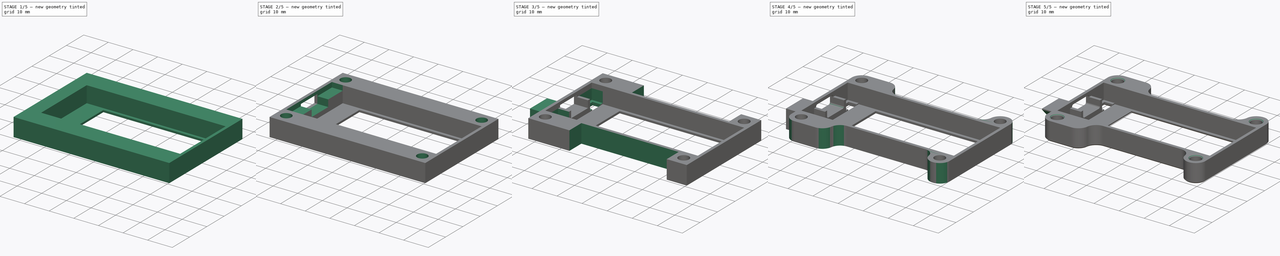
[diagram: build sequence overview — one tinted view per stage of 5, left to right]
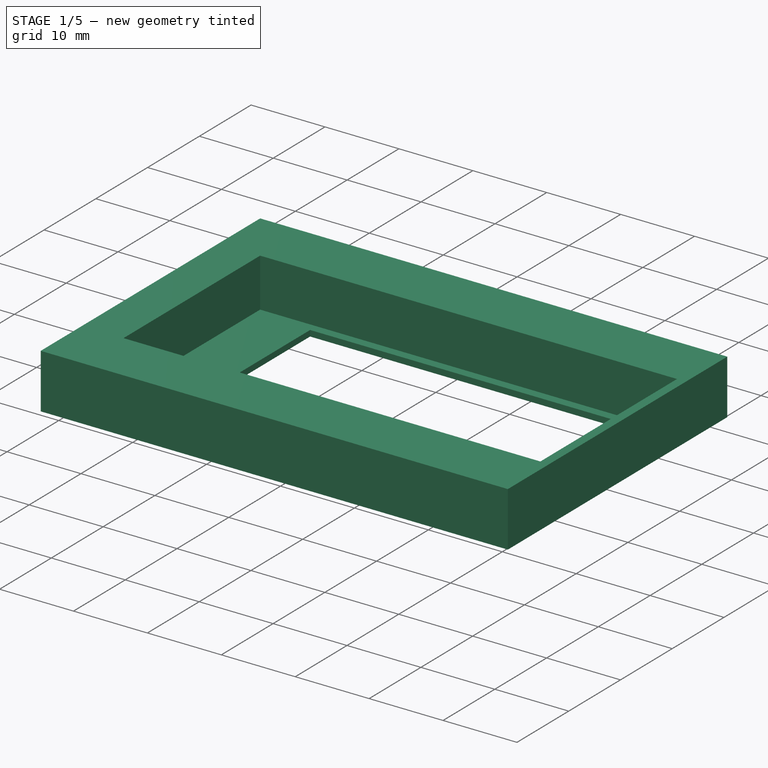
[diagram: stage 1 of 5 — iso view after this stage's code; geometry added in this stage tinted green]
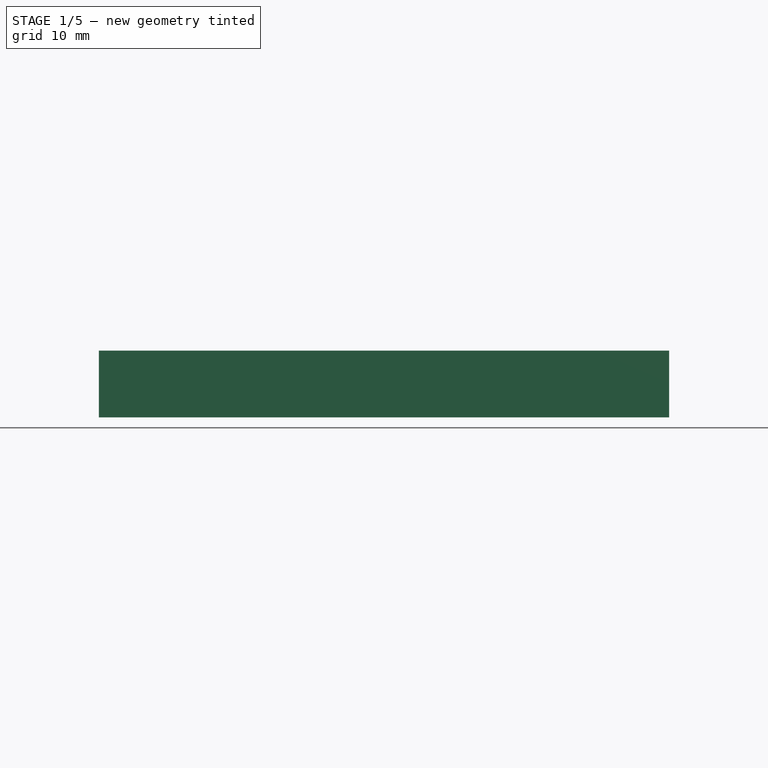
[diagram: stage 1 of 5 — front view after this stage's code; geometry added in this stage tinted green]
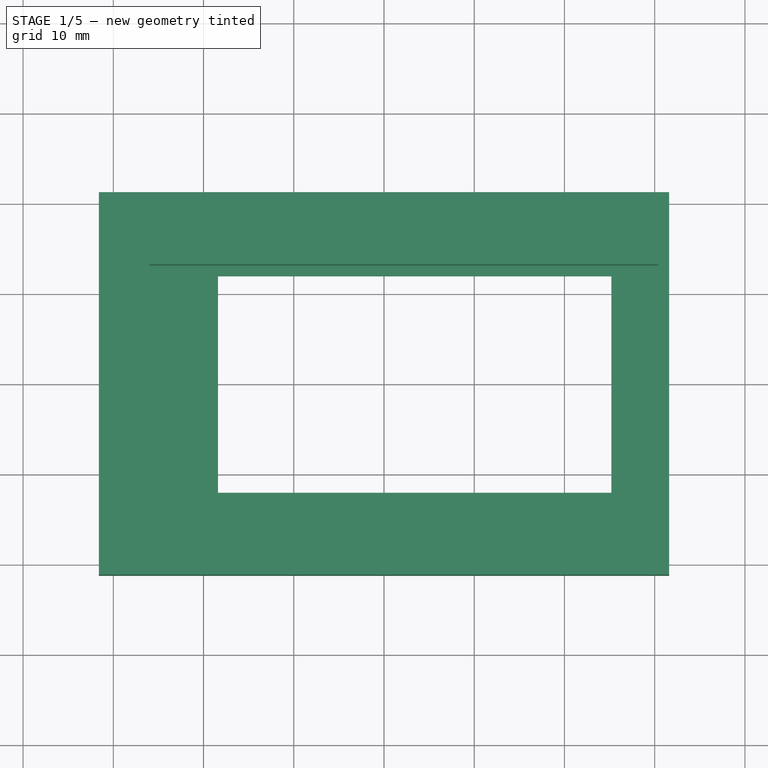
[diagram: stage 1 of 5 — top view after this stage's code; geometry added in this stage tinted green]
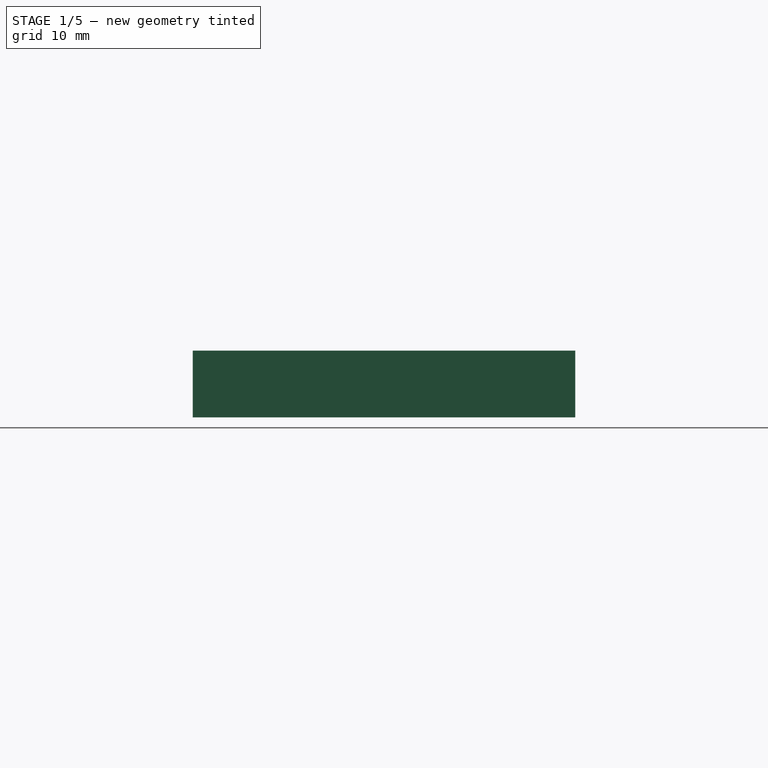
[diagram: stage 1 of 5 — right view after this stage's code; geometry added in this stage tinted green]
FCSTD DOCUMENT  (FreeCAD 0.21R33668 +26 (Git))
Label: topPlateV1.0
License: All rights reserved
LicenseURL: https://en.wikipedia.org/wiki/All_rights_reserved
objects: Sketcher::SketchObject×11, PartDesign::Pocket×8, PartDesign::Chamfer×4, PartDesign::Fillet×3, PartDesign::Pad×2, PartDesign::Plane×2, PartDesign::Hole×1, PartDesign::Body×1
note: 50 computed .brp shape members not serialized (recipe doc carries the construction recipe); baked Part::Feature solids carry a one-line shape summary decoded from their .brp

FEATURE [Sketcher::SketchObject] Sketch
  FullyConstrained = true
  MapMode = 5
  Support = -> [XY_Plane]
  sketch-geometry (5):
    g0: LineSegment StartX=31.6 StartY=-21.2 StartZ=0 EndX=31.6 EndY=21.2 EndZ=0
    g1: LineSegment StartX=31.6 StartY=21.2 StartZ=0 EndX=-31.6 EndY=21.2 EndZ=0
    g2: LineSegment StartX=-31.6 StartY=21.2 StartZ=0 EndX=-31.6 EndY=-21.2 EndZ=0
    g3: LineSegment StartX=-31.6 StartY=-21.2 StartZ=0 EndX=31.6 EndY=-21.2 EndZ=0
    g4: GeomPoint X=0 Y=0 Z=0
  constraints (12):
    c: Coincident(g0,g1)
    c: Coincident(g1,g2)
    c: Coincident(g2,g3)
    c: Coincident(g3,g0)
    c: Horizontal(g1)
    c: Horizontal(g3)
    c: Vertical(g0)
    c: Vertical(g2)
    c: Symmetric(g1,g0,g4)
    c: Coincident(g4,g-1)
    c: Distance(g1) = 63.2
    c: Distance(g2) = 42.4
FEATURE [PartDesign::Pad] Pad
  Direction = (0,0,1)
  Length = 7.4
  Length2 = 10
  Profile = -> Sketch
  ReferenceAxis = -> Sketch [N_Axis]
  Type = 0
FEATURE [PartDesign::Plane] DatumPlane
  Length = 74.4428
  MapMode = 5
  Placement = pos=(0,0,7.4) rot=(0,0,1;0rad)
  ResizeMode = 0
  Support = -> [Pad]
  Width = 61.2428
FEATURE [Sketcher::SketchObject] Sketch001
  FullyConstrained = true
  MapMode = 5
  Placement = pos=(0,0,7.4) rot=(0,0,1;0rad)
  Support = -> [DatumPlane]
  sketch-geometry (5):
    g0: LineSegment StartX=30.4 StartY=-13.2 StartZ=0 EndX=30.4 EndY=13.2 EndZ=0
    g1: LineSegment StartX=30.4 StartY=13.2 StartZ=0 EndX=-26 EndY=13.2 EndZ=0
    g2: LineSegment StartX=-26 StartY=13.2 StartZ=0 EndX=-26 EndY=-13.2 EndZ=0
    g3: LineSegment StartX=-26 StartY=-13.2 StartZ=0 EndX=30.4 EndY=-13.2 EndZ=0
    g4: GeomPoint X=2.2 Y=0 Z=0
  constraints (13):
    c: Coincident(g0,g1)
    c: Coincident(g1,g2)
    c: Coincident(g2,g3)
    c: Coincident(g3,g0)
    c: Horizontal(g1)
    c: Horizontal(g3)
    c: Vertical(g0)
    c: Vertical(g2)
    c: Symmetric(g1,g0,g4)
    c: PointOnObject(g4,g-1)
    c: DistanceX(g-1,g4) = 2.2
    c: Distance(g1) = 56.4
    c: Distance(g0) = 26.4
FEATURE [PartDesign::Pocket] Pocket
  BaseFeature = -> Pad
  Direction = (0,0,-1)
  Length = 6.6
  Length2 = 5
  Profile = -> Sketch001
  ReferenceAxis = -> Sketch001 [N_Axis]
  Type = 0
FEATURE [Sketcher::SketchObject] Sketch002
  FullyConstrained = true
  MapMode = 5
  Placement = pos=(0,0,7.4) rot=(0,0,1;0rad)
  Support = -> [DatumPlane]
  sketch-geometry (5):
    g0: LineSegment StartX=25.2 StartY=-12 StartZ=0 EndX=25.2 EndY=12 EndZ=0
    g1: LineSegment StartX=25.2 StartY=12 StartZ=0 EndX=-18.4 EndY=12 EndZ=0
    g2: LineSegment StartX=-18.4 StartY=12 StartZ=0 EndX=-18.4 EndY=-12 EndZ=0
    g3: LineSegment StartX=-18.4 StartY=-12 StartZ=0 EndX=25.2 EndY=-12 EndZ=0
    g4: GeomPoint X=3.4 Y=0 Z=0
  constraints (13):
    c: Coincident(g0,g1)
    c: Coincident(g1,g2)
    c: Coincident(g2,g3)
    c: Coincident(g3,g0)
    c: Horizontal(g1)
    c: Horizontal(g3)
    c: Vertical(g0)
    c: Vertical(g2)
    c: Symmetric(g1,g0,g4)
    c: PointOnObject(g4,g-1)
    c: Distance(g-1,g4) = 3.4
    c: Distance(g0) = 24
    c: Distance(g1) = 43.6
FEATURE [PartDesign::Pocket] Pocket001
  BaseFeature = -> Pocket
  Direction = (0,0,-1)
  Length = 0
  Length2 = 5
  Profile = -> Sketch002
  ReferenceAxis = -> Sketch002 [N_Axis]
  Type = 3
  UpToFace = -> Pocket [Face4]
FEATURE [PartDesign::Plane] DatumPlane001
  Length = 60
  MapMode = 5
  Placement = pos=(-31.6,0,0) rot=(0.57735,-0.57735,-0.57735;2.0944rad)
  ResizeMode = 0
  Support = -> [Pocket001]
  Width = 60
FEATURE [Sketcher::SketchObject] Sketch003
  FullyConstrained = true
  MapMode = 5
  Placement = pos=(-31.6,0,0) rot=(0.57735,-0.57735,-0.57735;2.0944rad)
  Support = -> [DatumPlane001]
  sketch-geometry (4):
    g0: LineSegment StartX=-4.8 StartY=2.6 StartZ=0 EndX=4.8 EndY=2.6 EndZ=0
    g1: LineSegment StartX=4.8 StartY=2.6 StartZ=0 EndX=4.8 EndY=6.2 EndZ=0
    g2: LineSegment StartX=4.8 StartY=6.2 StartZ=0 EndX=-4.8 EndY=6.2 EndZ=0
    g3: LineSegment StartX=-4.8 StartY=6.2 StartZ=0 EndX=-4.8 EndY=2.6 EndZ=0
  constraints (12):
    c: Coincident(g0,g1)
    c: Coincident(g1,g2)
    c: Coincident(g2,g3)
    c: Coincident(g3,g0)
    c: Horizontal(g0)
    c: Horizontal(g2)
    c: Vertical(g1)
    c: Vertical(g3)
    c: Distance(g2) = 9.6
    c: Distance(g3) = 3.6
    c: Distance(g-1,g0) = 2.6
    c: Distance(g0,g-2) = 4.8
FEATURE [PartDesign::Pocket] Pocket002
  BaseFeature = -> Pocket001
  Direction = (1,0,0)
  Length = 1.2
  Length2 = 5
  Profile = -> Sketch003
  ReferenceAxis = -> Sketch003 [N_Axis]
  Type = 0
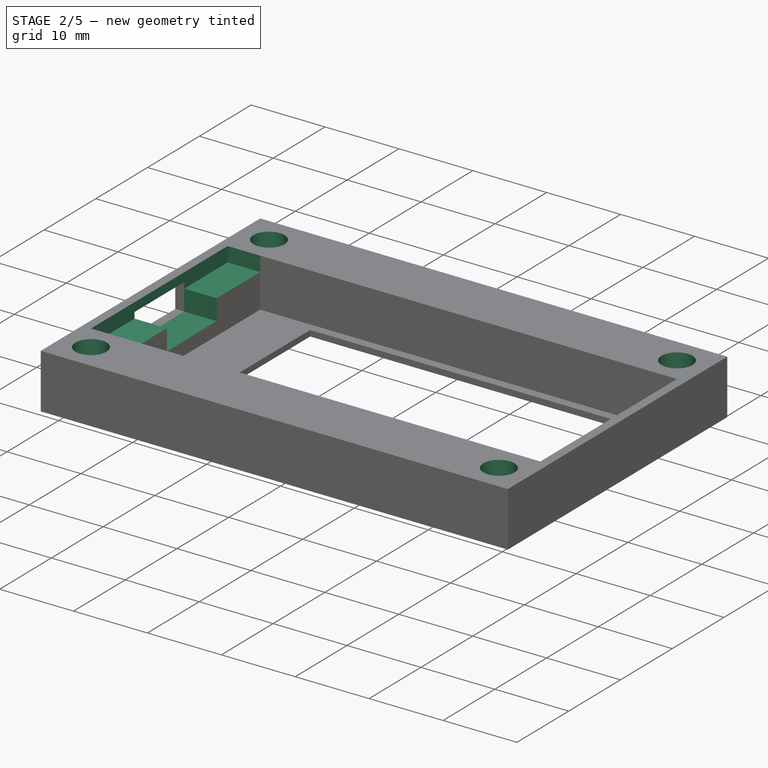
[diagram: stage 2 of 5 — iso view after this stage's code; geometry added in this stage tinted green]
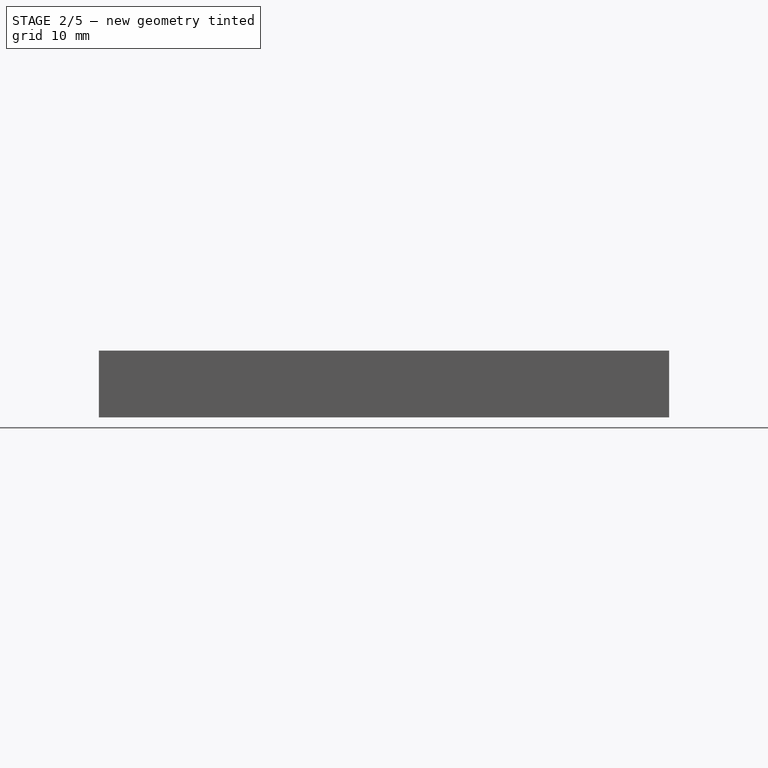
[diagram: stage 2 of 5 — front view after this stage's code; geometry added in this stage tinted green]
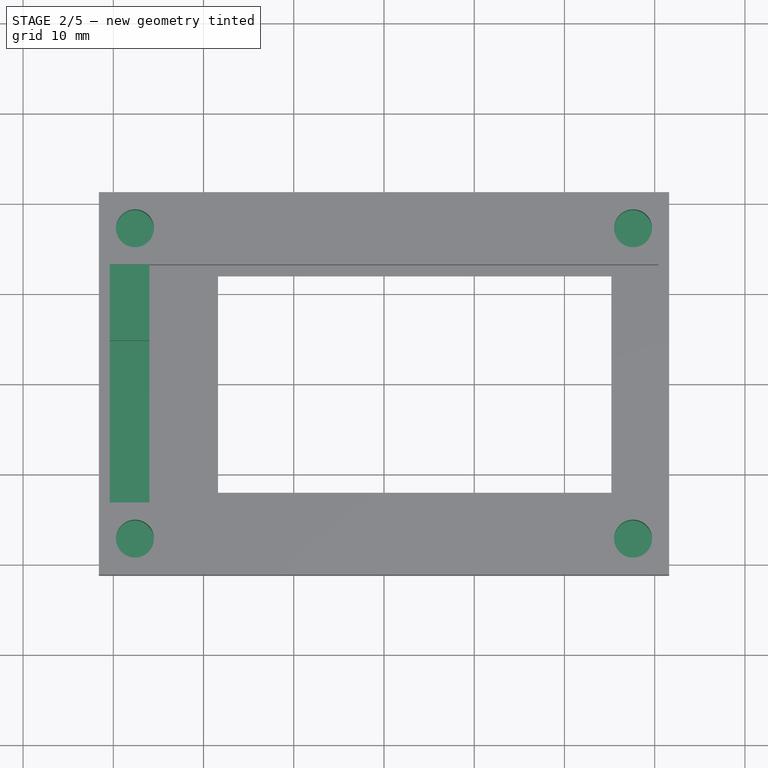
[diagram: stage 2 of 5 — top view after this stage's code; geometry added in this stage tinted green]
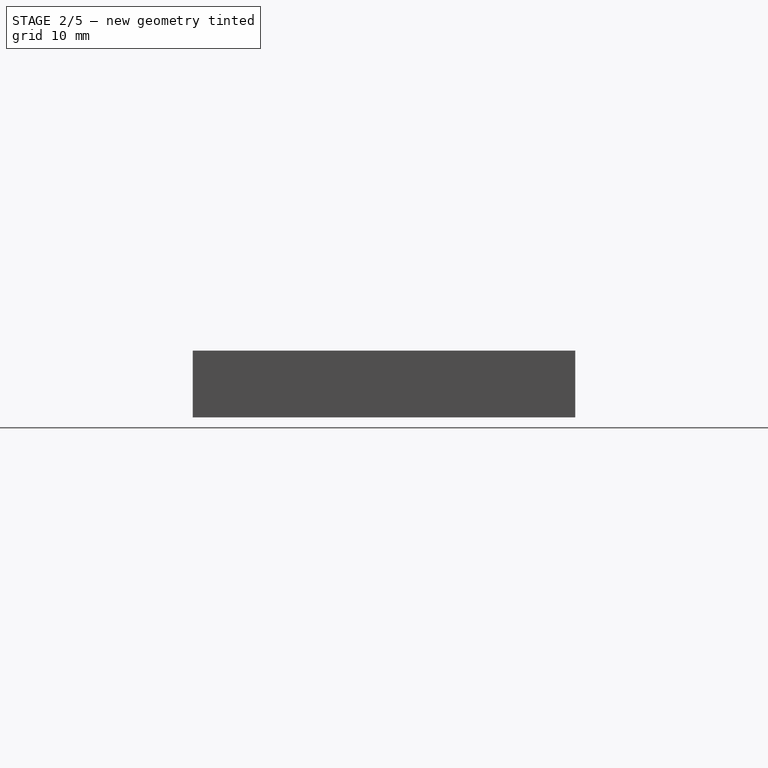
[diagram: stage 2 of 5 — right view after this stage's code; geometry added in this stage tinted green]
FEATURE [Sketcher::SketchObject] Sketch004
  FullyConstrained = true
  MapMode = 5
  Placement = pos=(0,0,7.4) rot=(0,0,1;0rad)
  Support = -> [DatumPlane]
  sketch-geometry (4):
    g0: Circle CenterX=-27.6 CenterY=17.2 CenterZ=0 NormalX=0 NormalY=0 NormalZ=1 AngleXU=0 Radius=2.05
    g1: Circle CenterX=-27.6 CenterY=-17.2 CenterZ=0 NormalX=0 NormalY=0 NormalZ=1 AngleXU=0 Radius=2.05
    g2: Circle CenterX=27.6 CenterY=17.2 CenterZ=0 NormalX=0 NormalY=0 NormalZ=1 AngleXU=0 Radius=2.05
    g3: Circle CenterX=27.6 CenterY=-17.2 CenterZ=0 NormalX=0 NormalY=0 NormalZ=1 AngleXU=0 Radius=2.05
  constraints (9):
    c: Diameter(g0) = 4.1
    c: DistanceX(g-2,g0) = -27.6
    c: DistanceY(g-1,g0) = 17.2
    c: Symmetric(g0,g1,g-1)
    c: Symmetric(g0,g2,g-2)
    c: Symmetric(g0,g3,g-1)
    c: Equal(g0,g1)
    c: Equal(g0,g2)
    c: Equal(g0,g3)
FEATURE [PartDesign::Hole] Hole
  BaseFeature = -> Pocket002
  CustomThreadClearance = 0
  Depth = 6
  DepthType = 0
  Diameter = 4.2
  DrillForDepth = false
  DrillPoint = 0
  DrillPointAngle = 118
  HoleCutCountersinkAngle = 90
  HoleCutCustomValues = false
  HoleCutDepth = 0
  HoleCutDiameter = 4.9
  HoleCutType = 0
  ModelThread = false
  Profile = -> Sketch004
  Tapered = false
  TaperedAngle = 90
  ThreadClass = 0
  ThreadDepth = 6
  ThreadDepthType = 0
  ThreadDirection = 0
  ThreadFit = 0
  ThreadSize = 0
  ThreadType = 0
  Threaded = false
  UseCustomThreadClearance = false
FEATURE [Sketcher::SketchObject] Sketch005
  FullyConstrained = true
  MapMode = 5
  Placement = pos=(0,0,7.4) rot=(0,0,1;0rad)
  Support = -> [DatumPlane]
  sketch-geometry (5):
    g0: LineSegment StartX=-30.4 StartY=-13.2 StartZ=0 EndX=-30.4 EndY=13.2 EndZ=0
    g1: LineSegment StartX=-30.4 StartY=13.2 StartZ=0 EndX=-26 EndY=13.2 EndZ=0
    g2: LineSegment StartX=-26 StartY=13.2 StartZ=0 EndX=-26 EndY=-13.2 EndZ=0
    g3: LineSegment StartX=-26 StartY=-13.2 StartZ=0 EndX=-30.4 EndY=-13.2 EndZ=0
    g4: GeomPoint X=-28.2 Y=0 Z=0
  constraints (13):
    c: Coincident(g0,g1)
    c: Coincident(g1,g2)
    c: Coincident(g2,g3)
    c: Coincident(g3,g0)
    c: Horizontal(g1)
    c: Horizontal(g3)
    c: Vertical(g0)
    c: Vertical(g2)
    c: Symmetric(g1,g0,g4)
    c: PointOnObject(g4,g-1)
    c: DistanceX(g4,g-1) = 28.2
    c: Distance(g1) = 4.4
    c: Distance(g0) = 26.4
FEATURE [PartDesign::Pocket] Pocket003
  BaseFeature = -> Hole
  Direction = (0,0,-1)
  Length = 2
  Length2 = 5
  Profile = -> Sketch005
  ReferenceAxis = -> Sketch005 [N_Axis]
  Type = 0
FEATURE [Sketcher::SketchObject] Sketch006
  FullyConstrained = true
  MapMode = 5
  Placement = pos=(0,0,7.4) rot=(0,0,1;0rad)
  Support = -> [DatumPlane]
  sketch-geometry (5):
    g0: LineSegment StartX=-26 StartY=-4.8 StartZ=0 EndX=-26 EndY=4.8 EndZ=0
    g1: LineSegment StartX=-26 StartY=4.8 StartZ=0 EndX=-30.4 EndY=4.8 EndZ=0
    g2: LineSegment StartX=-30.4 StartY=4.8 StartZ=0 EndX=-30.4 EndY=-4.8 EndZ=0
    g3: LineSegment StartX=-30.4 StartY=-4.8 StartZ=0 EndX=-26 EndY=-4.8 EndZ=0
    g4: GeomPoint X=-28.2 Y=0 Z=0
  constraints (13):
    c: Coincident(g0,g1)
    c: Coincident(g1,g2)
    c: Coincident(g2,g3)
    c: Coincident(g3,g0)
    c: Horizontal(g1)
    c: Horizontal(g3)
    c: Vertical(g0)
    c: Vertical(g2)
    c: Symmetric(g1,g0,g4)
    c: PointOnObject(g4,g-1)
    c: Distance(g1) = 4.4
    c: Distance(g0) = 9.6
    c: DistanceX(g4,g-1) = 28.2
FEATURE [PartDesign::Pocket] Pocket004
  BaseFeature = -> Pocket003
  Direction = (0,0,-1)
  Length = 4.8
  Length2 = 5
  Profile = -> Sketch006
  ReferenceAxis = -> Sketch006 [N_Axis]
  Type = 0
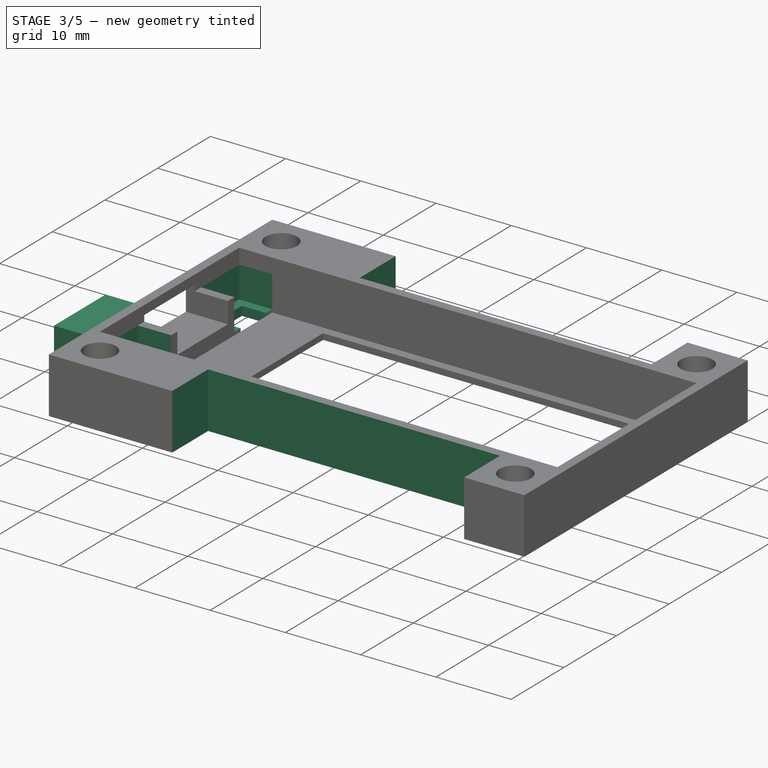
[diagram: stage 3 of 5 — iso view after this stage's code; geometry added in this stage tinted green]
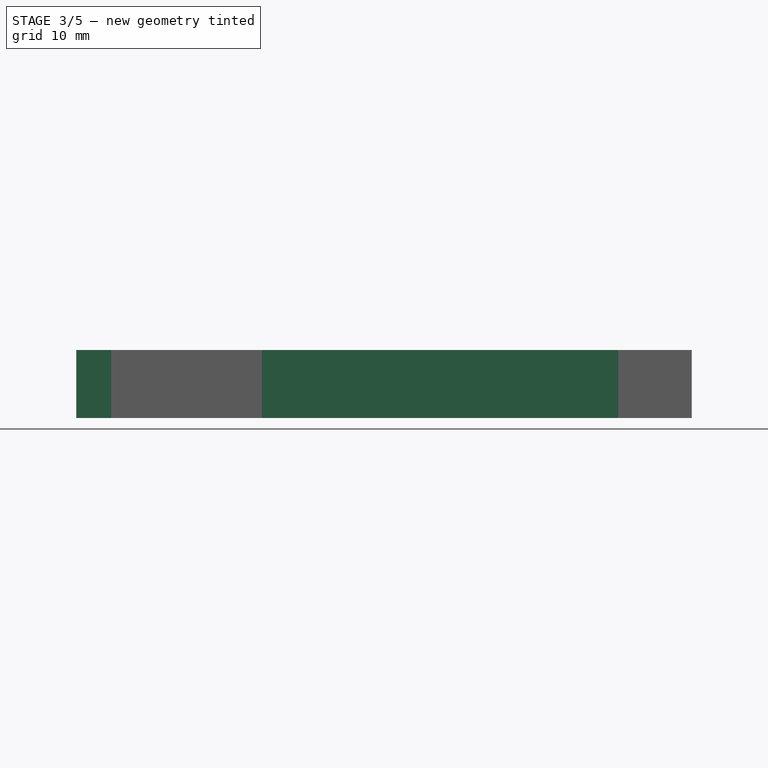
[diagram: stage 3 of 5 — front view after this stage's code; geometry added in this stage tinted green]
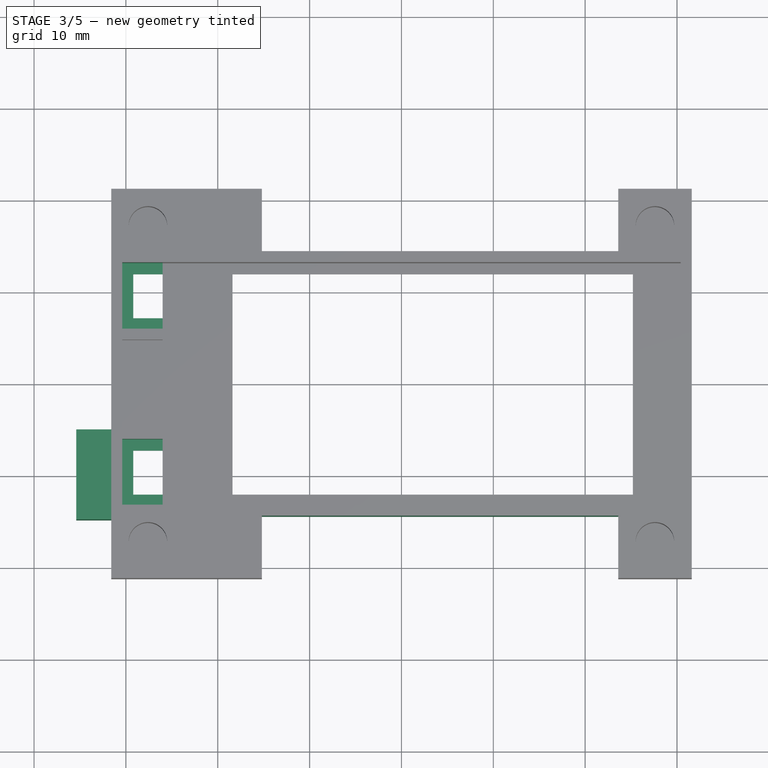
[diagram: stage 3 of 5 — top view after this stage's code; geometry added in this stage tinted green]
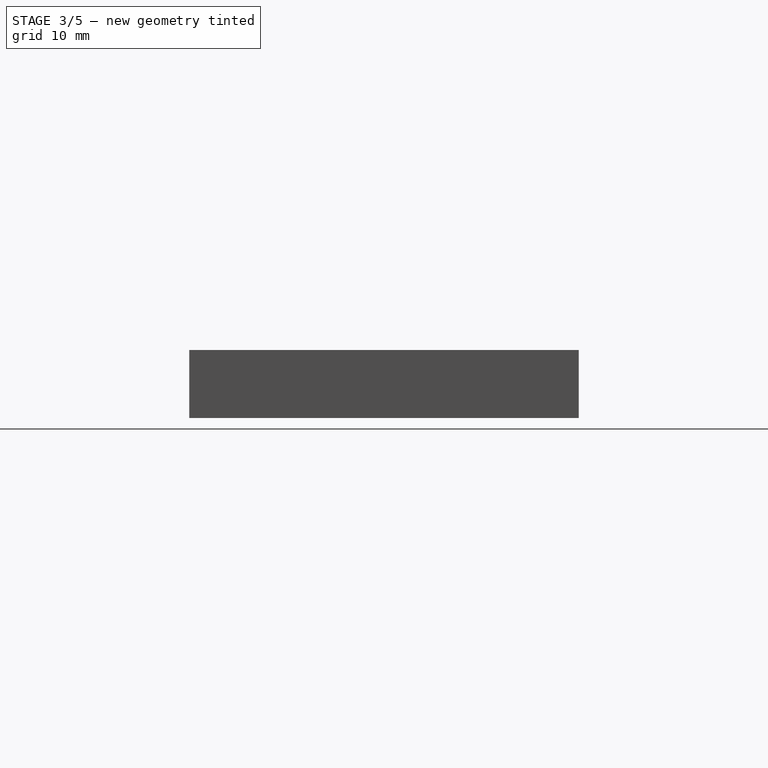
[diagram: stage 3 of 5 — right view after this stage's code; geometry added in this stage tinted green]
FEATURE [Sketcher::SketchObject] Sketch007
  FullyConstrained = true
  MapMode = 5
  Placement = pos=(0,0,7.4) rot=(0,0,1;0rad)
  Support = -> [DatumPlane]
  sketch-geometry (10):
    g0: LineSegment StartX=-30.4 StartY=6 StartZ=0 EndX=-30.4 EndY=13.2 EndZ=0
    g1: LineSegment StartX=-30.4 StartY=13.2 StartZ=0 EndX=-26 EndY=13.2 EndZ=0
    g2: LineSegment StartX=-26 StartY=13.2 StartZ=0 EndX=-26 EndY=6 EndZ=0
    g3: LineSegment StartX=-26 StartY=6 StartZ=0 EndX=-30.4 EndY=6 EndZ=0
    g4: GeomPoint X=-28.2 Y=9.6 Z=0
    g5: LineSegment StartX=-30.4 StartY=-6 StartZ=0 EndX=-30.4 EndY=-13.2 EndZ=0
    g6: LineSegment StartX=-30.4 StartY=-13.2 StartZ=0 EndX=-26 EndY=-13.2 EndZ=0
    g7: LineSegment StartX=-26 StartY=-13.2 StartZ=0 EndX=-26 EndY=-6 EndZ=0
    g8: LineSegment StartX=-26 StartY=-6 StartZ=0 EndX=-30.4 EndY=-6 EndZ=0
    g9: GeomPoint X=-28.2 Y=-9.6 Z=0
  constraints (25):
    c: Coincident(g0,g1)
    c: Coincident(g1,g2)
    c: Coincident(g2,g3)
    c: Coincident(g3,g0)
    c: Horizontal(g1)
    c: Horizontal(g3)
    c: Vertical(g0)
    c: Vertical(g2)
    c: Symmetric(g1,g0,g4)
    c: DistanceX(g4,g-1) = 28.2
    c: DistanceY(g-1,g4) = 9.6
    c: Distance(g1) = 4.4
    c: Distance(g2) = 7.2
    c: Coincident(g5,g6)
    c: Coincident(g6,g7)
    c: Coincident(g7,g8)
    c: Coincident(g8,g5)
    c: Horizontal(g6)
    c: Horizontal(g8)
    c: Vertical(g5)
    c: Vertical(g7)
    c: Symmetric(g6,g5,g9)
    c: Symmetric(g4,g9,g-1)
    c: Equal(g0,g5)
    c: Equal(g3,g8)
FEATURE [PartDesign::Pocket] Pocket005
  BaseFeature = -> Pocket004
  Direction = (0,0,-1)
  Length = 6.2
  Length2 = 5
  Profile = -> Sketch007
  ReferenceAxis = -> Sketch007 [N_Axis]
  Type = 0
FEATURE [Sketcher::SketchObject] Sketch009
  FullyConstrained = true
  MapMode = 5
  Placement = pos=(0,0,7.4) rot=(0,0,1;0rad)
  Support = -> [DatumPlane]
  sketch-geometry (10):
    g0: LineSegment StartX=-26 StartY=7.2 StartZ=0 EndX=-26 EndY=12 EndZ=0
    g1: LineSegment StartX=-26 StartY=12 StartZ=0 EndX=-29.2 EndY=12 EndZ=0
    g2: LineSegment StartX=-29.2 StartY=12 StartZ=0 EndX=-29.2 EndY=7.2 EndZ=0
    g3: LineSegment StartX=-29.2 StartY=7.2 StartZ=0 EndX=-26 EndY=7.2 EndZ=0
    g4: GeomPoint X=-27.6 Y=9.6 Z=0
    g5: LineSegment StartX=-26 StartY=-7.2 StartZ=0 EndX=-26 EndY=-12 EndZ=0
    g6: LineSegment StartX=-26 StartY=-12 StartZ=0 EndX=-29.2 EndY=-12 EndZ=0
    g7: LineSegment StartX=-29.2 StartY=-12 StartZ=0 EndX=-29.2 EndY=-7.2 EndZ=0
    g8: LineSegment StartX=-29.2 StartY=-7.2 StartZ=0 EndX=-26 EndY=-7.2 EndZ=0
    g9: GeomPoint X=-27.6 Y=-9.6 Z=0
  constraints (25):
    c: Coincident(g0,g1)
    c: Coincident(g1,g2)
    c: Coincident(g2,g3)
    c: Coincident(g3,g0)
    c: Horizontal(g1)
    c: Horizontal(g3)
    c: Vertical(g0)
    c: Vertical(g2)
    c: Symmetric(g1,g0,g4)
    c: DistanceY(g-1,g4) = 9.6
    c: DistanceX(g4,g-1) = 27.6
    c: Distance(g1) = 3.2
    c: Distance(g2) = 4.8
    c: Coincident(g5,g6)
    c: Coincident(g6,g7)
    c: Coincident(g7,g8)
    c: Coincident(g8,g5)
    c: Horizontal(g6)
    c: Horizontal(g8)
    c: Vertical(g5)
    c: Vertical(g7)
    c: Symmetric(g6,g5,g9)
    c: Equal(g2,g7)
    c: Equal(g6,g3)
    c: Symmetric(g4,g9,g-1)
FEATURE [PartDesign::Pocket] Pocket007
  BaseFeature = -> Pocket005
  Direction = (0,0,-1)
  Length = 0
  Length2 = 5
  Profile = -> Sketch009
  ReferenceAxis = -> Sketch009 [N_Axis]
  Type = 3
  UpToFace = -> Pocket005 [Face4]
FEATURE [Sketcher::SketchObject] Sketch010
  FullyConstrained = true
  MapMode = 5
  Placement = pos=(0,0,7.4) rot=(0,0,1;0rad)
  Support = -> [DatumPlane]
  sketch-geometry (10):
    g0: LineSegment StartX=23.6 StartY=14.4 StartZ=0 EndX=23.6 EndY=21.2 EndZ=0
    g1: LineSegment StartX=23.6 StartY=21.2 StartZ=0 EndX=-15.2 EndY=21.2 EndZ=0
    g2: LineSegment StartX=-15.2 StartY=21.2 StartZ=0 EndX=-15.2 EndY=14.4 EndZ=0
    g3: LineSegment StartX=-15.2 StartY=14.4 StartZ=0 EndX=23.6 EndY=14.4 EndZ=0
    g4: GeomPoint X=4.2 Y=17.8 Z=0
    g5: LineSegment StartX=23.6 StartY=-21.2 StartZ=0 EndX=23.6 EndY=-14.4 EndZ=0
    g6: LineSegment StartX=23.6 StartY=-14.4 StartZ=0 EndX=-15.2 EndY=-14.4 EndZ=0
    g7: LineSegment StartX=-15.2 StartY=-14.4 StartZ=0 EndX=-15.2 EndY=-21.2 EndZ=0
    g8: LineSegment StartX=-15.2 StartY=-21.2 StartZ=0 EndX=23.6 EndY=-21.2 EndZ=0
    g9: GeomPoint X=4.2 Y=-17.8 Z=0
  constraints (25):
    c: Coincident(g0,g1)
    c: Coincident(g1,g2)
    c: Coincident(g2,g3)
    c: Coincident(g3,g0)
    c: Horizontal(g1)
    c: Horizontal(g3)
    c: Vertical(g0)
    c: Vertical(g2)
    c: Symmetric(g1,g0,g4)
    c: Distance(g1) = 38.8
    c: Distance(g0) = 6.8
    c: DistanceX(g-1,g0) = 23.6
    c: DistanceY(g-1,g0) = 14.4
    c: Coincident(g5,g6)
    c: Coincident(g6,g7)
    c: Coincident(g7,g8)
    c: Coincident(g8,g5)
    c: Horizontal(g6)
    c: Horizontal(g8)
    c: Vertical(g5)
    c: Vertical(g7)
    c: Symmetric(g6,g5,g9)
    c: Symmetric(g4,g9,g-1)
    c: Equal(g0,g5)
    c: Equal(g8,g1)
FEATURE [PartDesign::Pocket] Pocket008
  BaseFeature = -> Pocket007
  Direction = (0,0,-1)
  Length = 0
  Length2 = 5
  Profile = -> Sketch010
  ReferenceAxis = -> Sketch010 [N_Axis]
  Type = 3
  UpToFace = -> Pocket007 [Face4]
FEATURE [Sketcher::SketchObject] Sketch011
  FullyConstrained = true
  MapMode = 5
  Support = -> [XY_Plane]
  sketch-geometry (4):
    g0: LineSegment StartX=-31.6 StartY=-5 StartZ=0 EndX=-35.4 EndY=-5 EndZ=0
    g1: LineSegment StartX=-35.4 StartY=-5 StartZ=0 EndX=-35.4 EndY=-14.8 EndZ=0
    g2: LineSegment StartX=-35.4 StartY=-14.8 StartZ=0 EndX=-31.6 EndY=-14.8 EndZ=0
    g3: LineSegment StartX=-31.6 StartY=-14.8 StartZ=0 EndX=-31.6 EndY=-5 EndZ=0
  constraints (12):
    c: Coincident(g0,g1)
    c: Coincident(g1,g2)
    c: Coincident(g2,g3)
    c: Coincident(g3,g0)
    c: Horizontal(g0)
    c: Horizontal(g2)
    c: Vertical(g1)
    c: Vertical(g3)
    c: Distance(g3) = 9.8
    c: Distance(g0) = 3.8
    c: DistanceX(g0,g-1) = 31.6
    c: DistanceY(g2,g-1) = 14.8
FEATURE [PartDesign::Pad] Pad001
  BaseFeature = -> Pocket008
  Direction = (0,0,1)
  Length = 7.4
  Length2 = 10
  Profile = -> Sketch011
  ReferenceAxis = -> Sketch011 [N_Axis]
  Type = 0
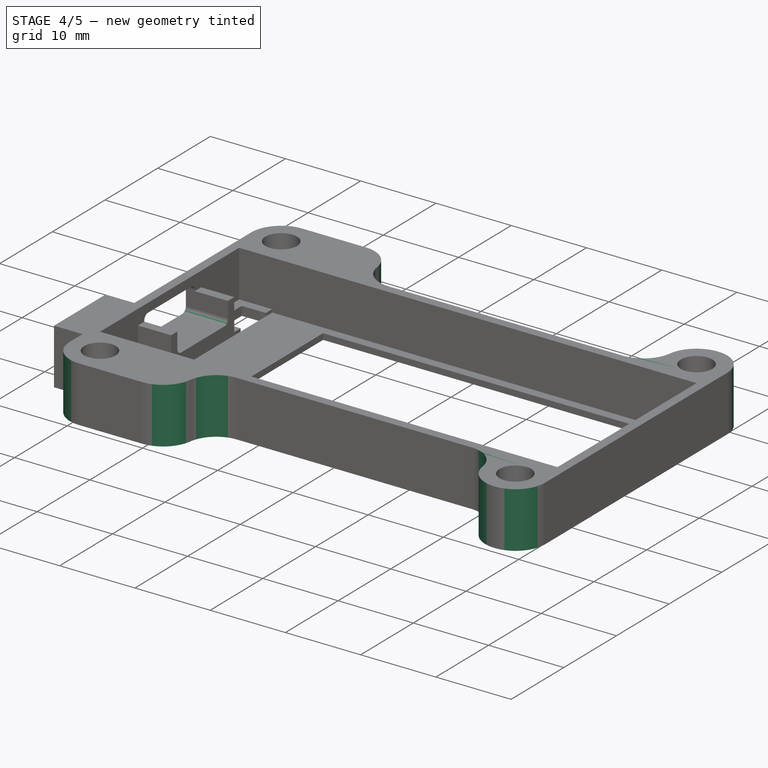
[diagram: stage 4 of 5 — iso view after this stage's code; geometry added in this stage tinted green]
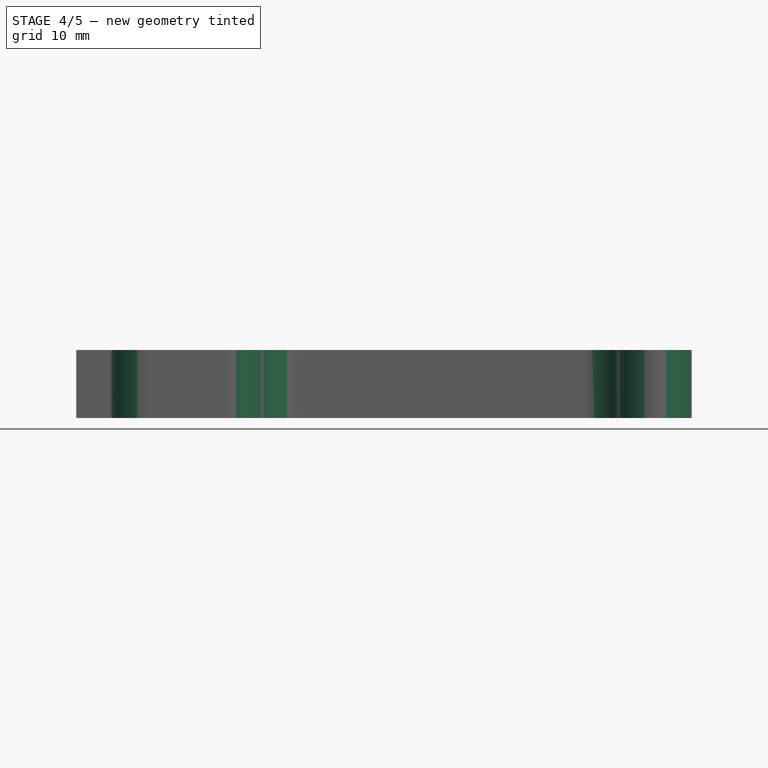
[diagram: stage 4 of 5 — front view after this stage's code; geometry added in this stage tinted green]
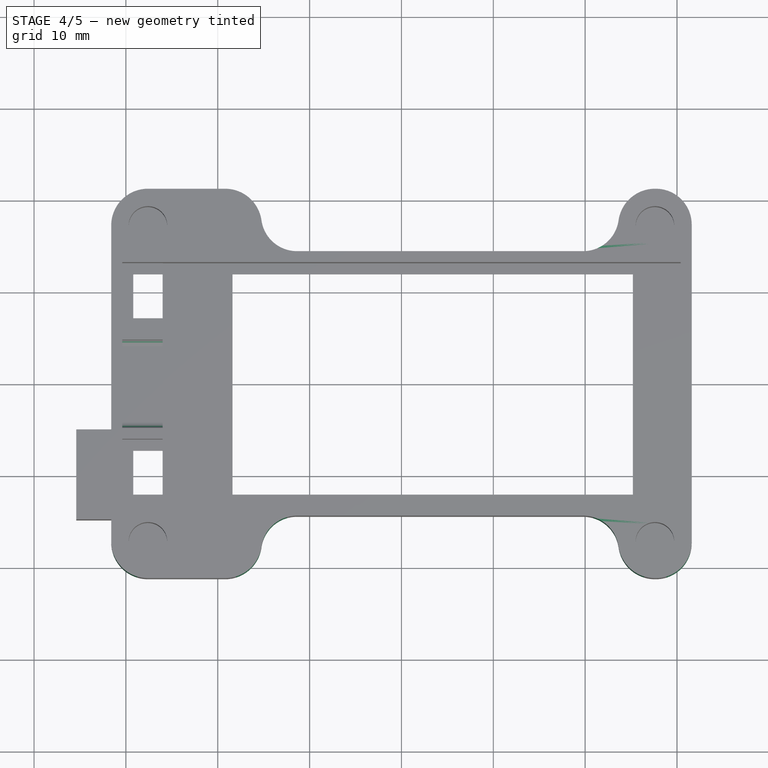
[diagram: stage 4 of 5 — top view after this stage's code; geometry added in this stage tinted green]
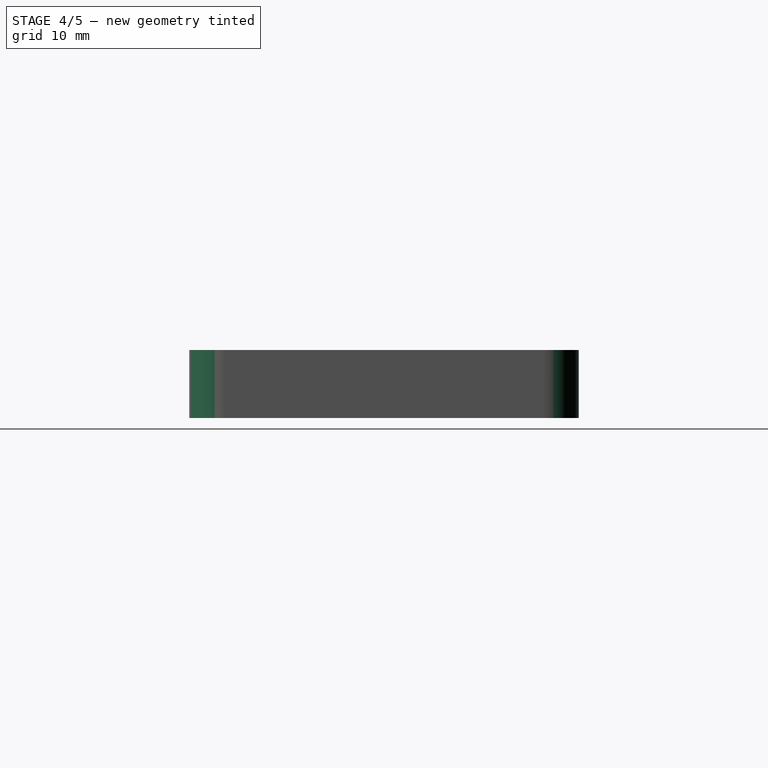
[diagram: stage 4 of 5 — right view after this stage's code; geometry added in this stage tinted green]
FEATURE [PartDesign::Fillet] Fillet
  Base = -> Pad001 [Edge9,Edge74,Edge63,Edge7,Edge62,Edge65]
  BaseFeature = -> Pad001
  Radius = 4
  SupportTransform = false
  UseAllEdges = false
FEATURE [PartDesign::Fillet] Fillet001
  Base = -> Fillet [Edge3,Edge71,Edge72,Edge81,Edge38,Edge79]
  BaseFeature = -> Fillet
  Radius = 3.9
  SupportTransform = false
  UseAllEdges = false
FEATURE [PartDesign::Fillet] Fillet002
  Base = -> Fillet001 [Edge170,Edge203,Edge171,Edge168,Edge202,Edge167]
  BaseFeature = -> Fillet001
  Radius = 0.7
  SupportTransform = false
  UseAllEdges = false
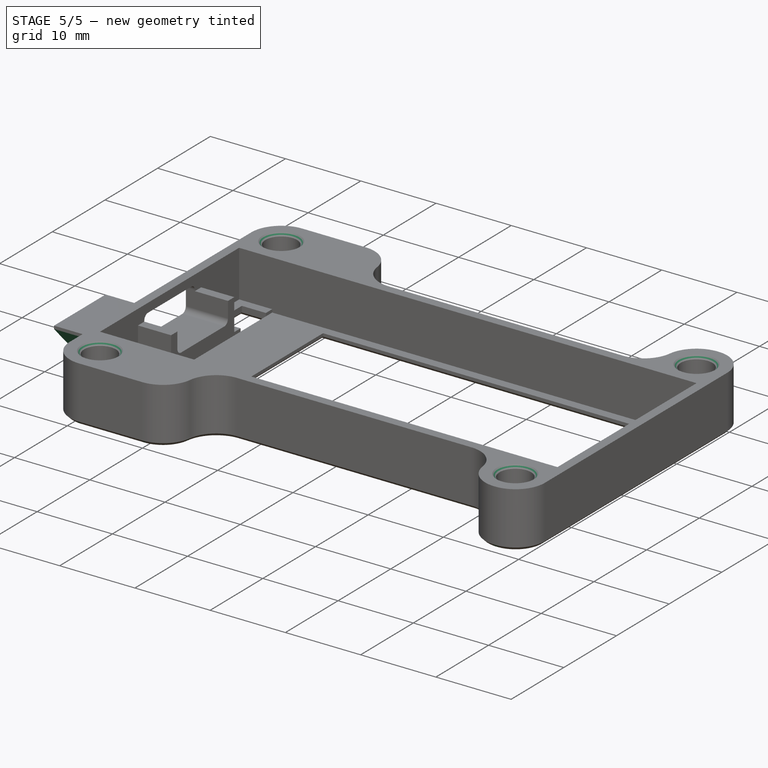
[diagram: stage 5 of 5 — iso view after this stage's code; geometry added in this stage tinted green]
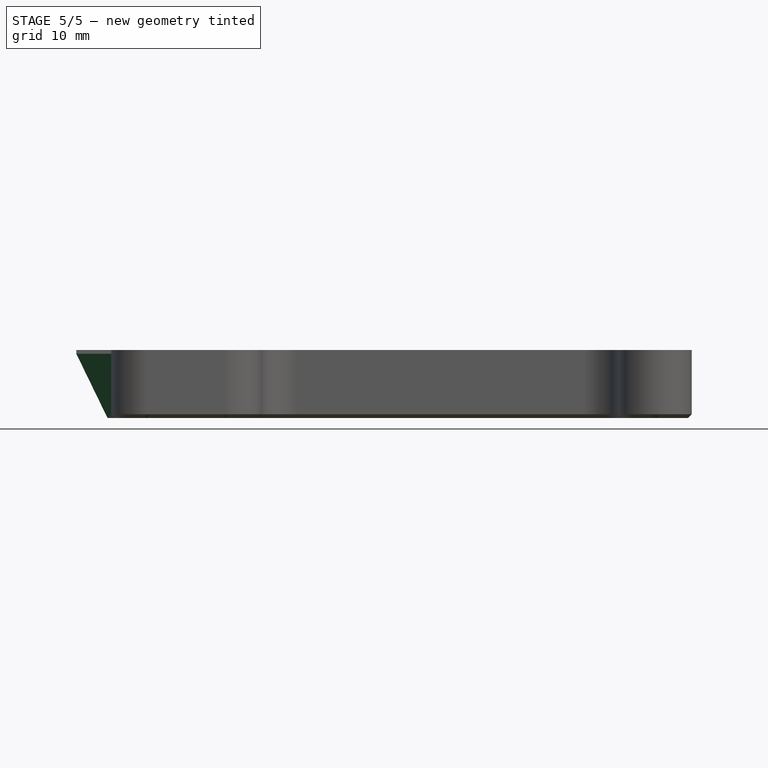
[diagram: stage 5 of 5 — front view after this stage's code; geometry added in this stage tinted green]
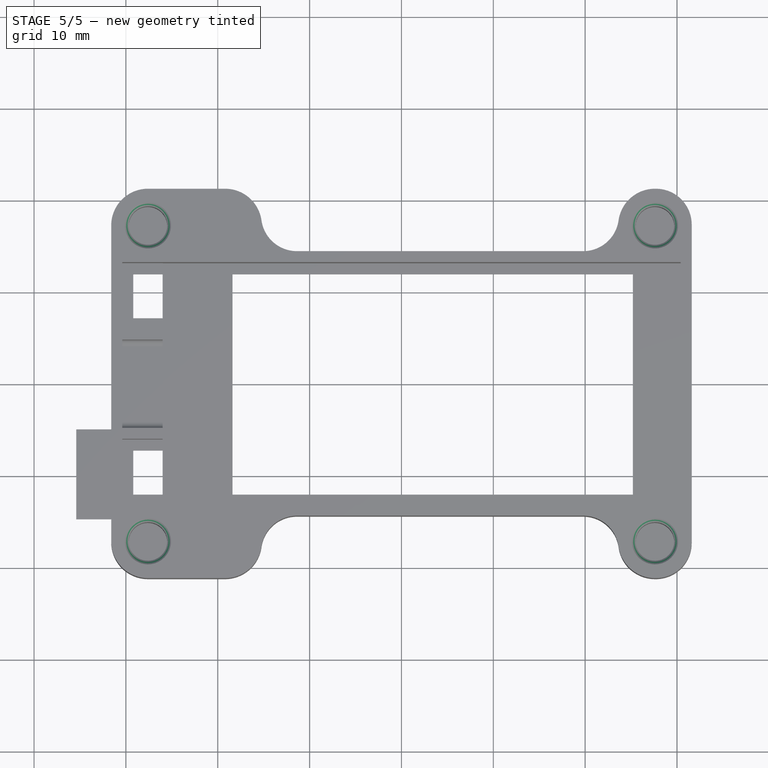
[diagram: stage 5 of 5 — top view after this stage's code; geometry added in this stage tinted green]
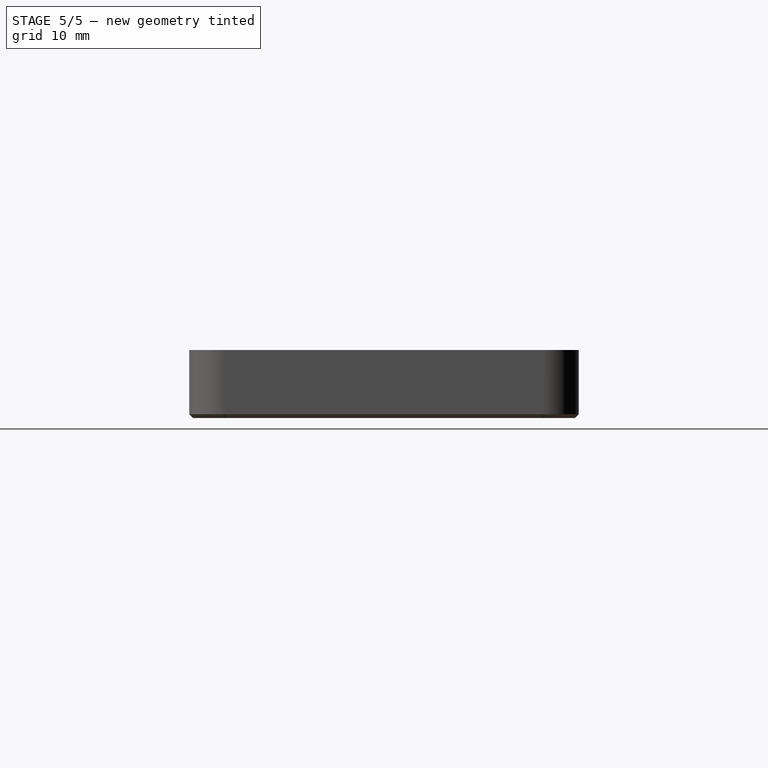
[diagram: stage 5 of 5 — right view after this stage's code; geometry added in this stage tinted green]
FEATURE [PartDesign::Chamfer] Chamfer
  Angle = 45
  Base = -> Fillet002 [Edge139]
  BaseFeature = -> Fillet002
  ChamferType = 1
  FlipDirection = false
  Size = 4.5
  Size2 = 7
  SupportTransform = false
  UseAllEdges = false
FEATURE [PartDesign::Chamfer] Chamfer001
  Angle = 45
  Base = -> Chamfer [Edge50]
  BaseFeature = -> Chamfer
  ChamferType = 1
  FlipDirection = false
  Size = 4.5
  Size2 = 7
  SupportTransform = false
  UseAllEdges = false
FEATURE [PartDesign::Chamfer] Chamfer002
  Angle = 45
  Base = -> Chamfer001 [Edge1]
  BaseFeature = -> Chamfer001
  ChamferType = 1
  FlipDirection = false
  Size = 3.4
  Size2 = 7
  SupportTransform = false
  UseAllEdges = false
FEATURE [PartDesign::Chamfer] Chamfer003
  Angle = 45
  Base = -> Chamfer002 [Edge135,Edge134,Edge146,Edge147,Face4]
  BaseFeature = -> Chamfer002
  ChamferType = 0
  FlipDirection = false
  Size = 0.4
  Size2 = 1
  SupportTransform = false
  UseAllEdges = false
FEATURE [PartDesign::Body] Body
  Group = -> [Sketch,Pad,DatumPlane,Sketch001,Pocket,Sketch002,Pocket001,DatumPlane001,Sketch003,Pocket002,Sketch004,Hole,Sketch005,Pocket003,Sketch006,Pocket004,Sketch007,Pocket005,Sketch009,Pocket007,Sketch010,Pocket008,Sketch011,Pad001,Fillet,Fillet001,Fillet002,Chamfer,Chamfer001,Chamfer002,Chamfer003]
  Origin = -> Origin
  Tip = -> Chamfer003
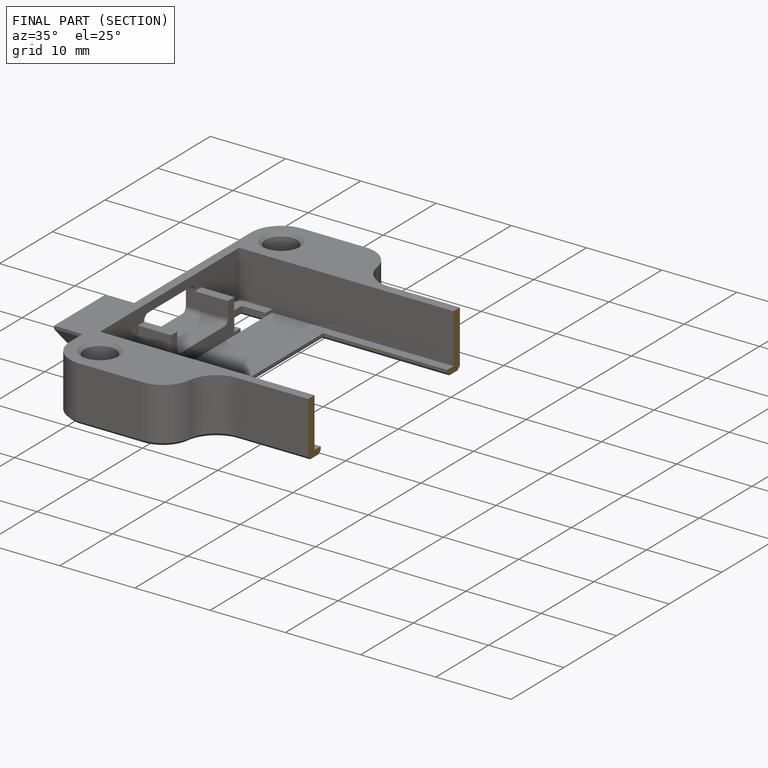
[diagram: finished part — half-section view (interior)]
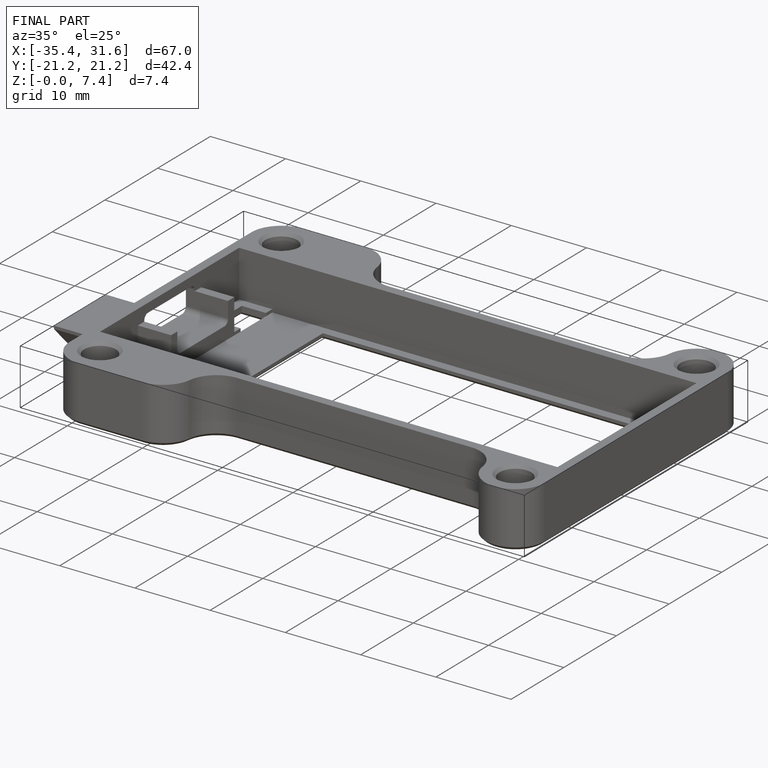
[diagram: finished part — iso view with bounding-box wireframe]
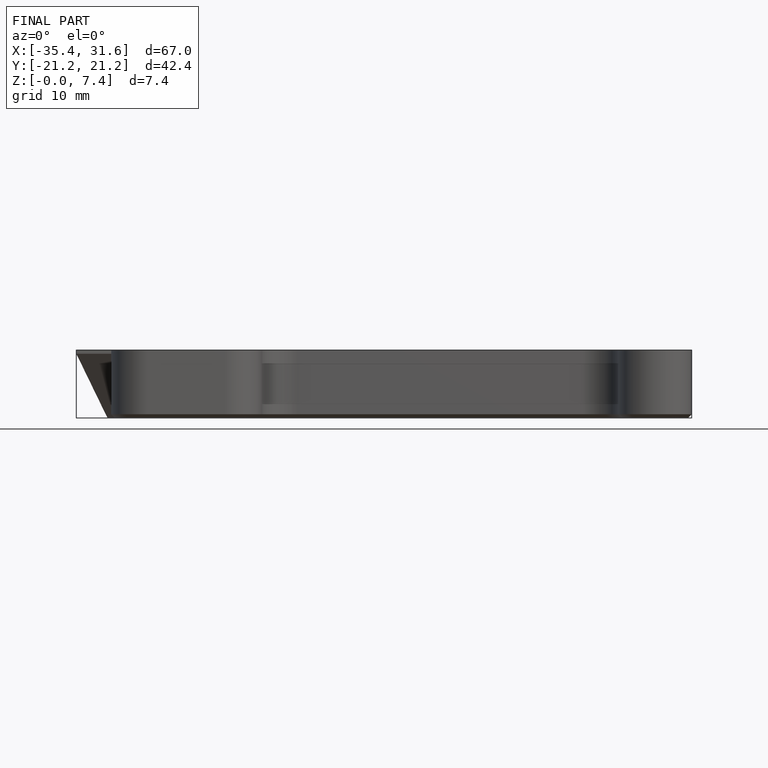
[diagram: finished part — front view with bounding-box wireframe]
